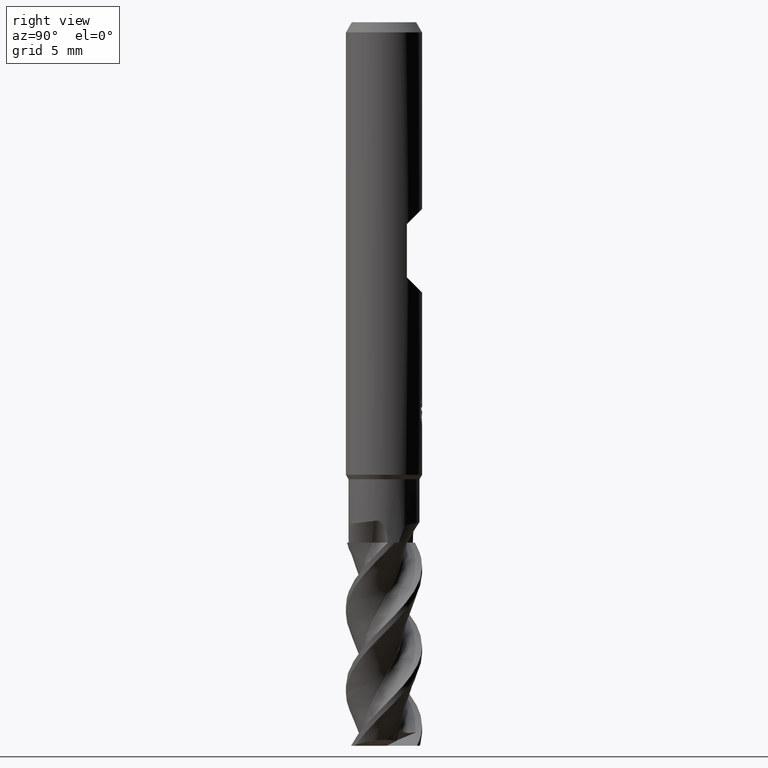
[diagram: clean part render]
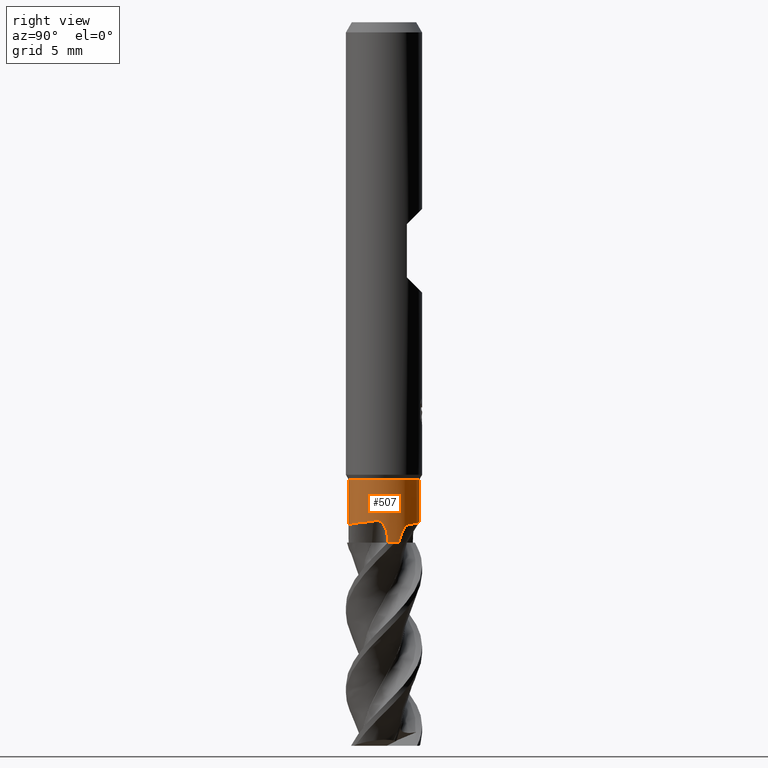
[diagram: same view with one face highlighted and labeled with its STEP entity id]
A machine part, right view. The second image highlights one B-rep face of the part: STEP entity #507.
In plain terms, the highlighted cylindrical surface (edge-blend (fillet) strip) has radius 2.7999 mm, axis along (-0, -0, 1).
Its self-contained STEP definition (entity closure, byte-faithful):
#491=EDGE_CURVE('',#1275,#677,#1359,.T.);
#507=ADVANCED_FACE('',(#1377),#1378,.T.);
#511=EDGE_CURVE('',#1193,#1149,#1382,.T.);
#533=EDGE_CURVE('',#1151,#1275,#1406,.T.);
#535=VERTEX_POINT('',#1408);
#589=VERTEX_POINT('',#1465);
#647=EDGE_CURVE('',#677,#535,#1527,.T.);
#677=VERTEX_POINT('',#1561);
#811=EDGE_CURVE('',#981,#589,#1709,.T.);
#901=EDGE_CURVE('',#1193,#589,#1808,.T.);
#981=VERTEX_POINT('',#1896);
#1069=EDGE_CURVE('',#981,#535,#1990,.T.);
#1111=EDGE_CURVE('',#1151,#1149,#2034,.T.);
#1149=VERTEX_POINT('',#2076);
#1151=VERTEX_POINT('',#2078);
#1193=VERTEX_POINT('',#2128);
#1275=VERTEX_POINT('',#2216);
#1359=B_SPLINE_CURVE_WITH_KNOTS('',3,(#2374,#2375,#2376,#2377,#2378,#2379,#2380,#2381,#2382,#2383,#2384,#2385,#2386,#2387),.UNSPECIFIED.,.F.,.F.,(4,2,2,2,2,2,4),(0.0,0.270750724048141,0.503985962693178,0.760948172209275,1.12620766547775,1.55957181737274,2.01677179178905),.UNSPECIFIED.);
#1377=FACE_OUTER_BOUND('',#2742,.T.);
#1378=CYLINDRICAL_SURFACE('',#2743,2.79995);
#1382=CIRCLE('',#2801,2.79995);
#1406=B_SPLINE_CURVE_WITH_KNOTS('',3,(#3312,#3313,#3314,#3315,#3316,#3317,#3318,#3319,#3320,#3321,#3322,#3323,#3324,#3325,#3326,#3327,#3328,#3329,#3330,#3331,#3332,#3333,#3334,#3335,#3336,#3337,#3338,#3339,#3340,#3341,#3342,#3343),.UNSPECIFIED.,.F.,.F.,(4,2,2,2,2,2,2,2,2,2,2,2,2,2,2,4),(0.0,1.21161568566194,1.3784614512403,1.47329026577986,1.50276758339504,1.52071331939619,1.53693237285625,1.55771434772985,1.60064794310033,1.80674053422712,2.02062760982944,2.36844400590092,3.13513750241832,4.21578584745323,4.78502595507138,5.34884206861933),.UNSPECIFIED.);
#1408=CARTESIAN_POINT('',(2.78669408379764,0.272132478449781,-41.0));
#1465=CARTESIAN_POINT('',(2.10389699615326E-009,2.79995,-39.3654765886539));
#1527=B_SPLINE_CURVE_WITH_KNOTS('',3,(#4046,#4047,#4048,#4049),.UNSPECIFIED.,.F.,.F.,(4,4),(0.0,0.388883061443336),.UNSPECIFIED.);
#1561=CARTESIAN_POINT('',(2.78738883582491,0.264921649584686,-40.6111816746857));
#1709=B_SPLINE_CURVE_WITH_KNOTS('',3,(#5131,#5132,#5133,#5134,#5135,#5136,#5137,#5138,#5139,#5140,#5141,#5142,#5143,#5144,#5145,#5146,#5147,#5148,#5149,#5150,#5151,#5152,#5153,#5154,#5155,#5156,#5157,#5158,#5159,#5160,#5161,#5162),.UNSPECIFIED.,.F.,.F.,(4,2,2,2,2,2,2,2,2,2,2,2,2,2,2,4),(0.0,1.21161568566885,1.37846145121529,1.47329026576383,1.50276758336711,1.52071331934799,1.53693237281325,1.55771434767431,1.6006479429974,1.80674053392393,2.02062760931936,2.3684440050621,3.13513750084955,4.21578584485333,4.78502595192732,5.34884206493603),.UNSPECIFIED.);
#1808=LINE('',#6143,#6144);
#1896=CARTESIAN_POINT('',(2.54719046065762,1.16255785216687,-41.0));
#1990=CIRCLE('',#7420,2.79995);
#2034=LINE('',#7672,#7673);
#2076=CARTESIAN_POINT('',(3.42883656038497E-016,-2.79995,-36.0));
#2078=CARTESIAN_POINT('',(-2.29880283077223E-015,-2.79995,-40.2983732954522));
#2128=CARTESIAN_POINT('',(0.0,2.79995,-36.0));
#2216=CARTESIAN_POINT('',(2.66784857932334,-0.849884674707355,-39.2992001891014));
#2374=CARTESIAN_POINT('',(2.66784857931745,-0.84988467472582,-39.2992001893713));
#2375=CARTESIAN_POINT('',(2.69364893102285,-0.768895531504305,-39.2688652821563));
#2376=CARTESIAN_POINT('',(2.7167286424285,-0.683534070615548,-39.2525659359706));
#2377=CARTESIAN_POINT('',(2.75238979990272,-0.51970291096378,-39.2591701640789));
#2378=CARTESIAN_POINT('',(2.76509681346806,-0.446101270102723,-39.2768173943779));
#2379=CARTESIAN_POINT('',(2.78513122905998,-0.298143927528133,-39.3426725767312));
#2380=CARTESIAN_POINT('',(2.79133891836439,-0.22808747450544,-39.3921879406331));
#2381=CARTESIAN_POINT('',(2.80027396331667,-0.077582290100716,-39.5345092410224));
#2382=CARTESIAN_POINT('',(2.80054225260432,-0.0050466433777626,-39.6367827003514));
#2383=CARTESIAN_POINT('',(2.798160520723,0.1213370764487,-39.8720401495675));
#2384=CARTESIAN_POINT('',(2.79488154355154,0.171894987121598,-40.0119892859719));
#2385=CARTESIAN_POINT('',(2.78965656789114,0.242613991358702,-40.3025843072924));
#2386=CARTESIAN_POINT('',(2.78767159904296,0.261946539627802,-40.457233540521));
#2387=CARTESIAN_POINT('',(2.78738883583437,0.264921649485141,-40.611181674686));
#2742=EDGE_LOOP('',(#9935,#9936,#9937,#9938,#9939,#9940,#9941,#9942));
#2743=AXIS2_PLACEMENT_3D('',#9943,#9944,#9945);
#2801=AXIS2_PLACEMENT_3D('',#9946,#9947,#9948);
#3312=CARTESIAN_POINT('',(-0.266790596982929,-2.78721057329034,-41.0000000000004));
#3313=CARTESIAN_POINT('',(-0.12905773821263,-2.80039430327746,-40.6205683768748));
#3314=CARTESIAN_POINT('',(0.0128717001084959,-2.80241247965801,-40.2391444602573));
#3315=CARTESIAN_POINT('',(0.147154023922113,-2.79612775844489,-39.974392678627));
#3316=CARTESIAN_POINT('',(0.164563309850221,-2.79517020585424,-39.9420062846511));
#3317=CARTESIAN_POINT('',(0.193316987634427,-2.7932879530591,-39.893390255363));
#3318=CARTESIAN_POINT('',(0.204217015497015,-2.79251603318701,-39.8759110321727));
#3319=CARTESIAN_POINT('',(0.219140511100922,-2.79136347279844,-39.8536033635465));
#3320=CARTESIAN_POINT('',(0.222733486916571,-2.79107921701723,-39.8483470585847));
#3321=CARTESIAN_POINT('',(0.228603234246342,-2.79060307640947,-39.8399590464612));
#3322=CARTESIAN_POINT('',(0.230845813454437,-2.79041849481651,-39.8367995082374));
#3323=CARTESIAN_POINT('',(0.235156742974344,-2.79005833742659,-39.8308159006635));
#3324=CARTESIAN_POINT('',(0.237221457324809,-2.78988357370339,-39.8279883017051));
#3325=CARTESIAN_POINT('',(0.241974186517183,-2.78947587796887,-39.8215703105708));
#3326=CARTESIAN_POINT('',(0.244674615576067,-2.78924037332973,-39.817988473536));
#3327=CARTESIAN_POINT('',(0.253052151103121,-2.78849721690731,-39.8070851595593));
#3328=CARTESIAN_POINT('',(0.258835376367114,-2.78796696013148,-39.7998453266009));
#3329=CARTESIAN_POINT('',(0.293249434362809,-2.78469805373667,-39.7585912157187));
#3330=CARTESIAN_POINT('',(0.324386895580063,-2.78133144987944,-39.7283497996894));
#3331=CARTESIAN_POINT('',(0.397571969066706,-2.77183496971221,-39.6749066456893));
#3332=CARTESIAN_POINT('',(0.437375599502105,-2.76590999203352,-39.6539314156298));
#3333=CARTESIAN_POINT('',(0.548225003405683,-2.74663852345043,-39.6088720918884));
#3334=CARTESIAN_POINT('',(0.624181368094352,-2.73047791109217,-39.5906466383523));
#3335=CARTESIAN_POINT('',(0.85210385060267,-2.67204763322722,-39.5463827204075));
#3336=CARTESIAN_POINT('',(1.05804233268657,-2.6047806209609,-39.5245383515918));
#3337=CARTESIAN_POINT('',(1.60233486717179,-2.32392186110581,-39.471130470762));
#3338=CARTESIAN_POINT('',(1.88662674826115,-2.09988727541145,-39.4451106481476));
#3339=CARTESIAN_POINT('',(2.24478868760592,-1.68418652225877,-39.3976650028158));
#3340=CARTESIAN_POINT('',(2.35341429578667,-1.5286944566189,-39.3803326369126));
#3341=CARTESIAN_POINT('',(2.53668477485501,-1.20000749388761,-39.3424216932772));
#3342=CARTESIAN_POINT('',(2.61114144244642,-1.02789241982489,-39.321992538188));
#3343=CARTESIAN_POINT('',(2.66784857932335,-0.849884674707345,-39.2992001891013));
#4046=CARTESIAN_POINT('',(2.7873888358249,0.264921649584684,-40.6111816746856));
#4047=CARTESIAN_POINT('',(2.78715078788507,0.267426285090707,-40.740784943971));
#4048=CARTESIAN_POINT('',(2.78691887605749,0.269830558207935,-40.8703929131832));
#4049=CARTESIAN_POINT('',(2.78669408379764,0.272132478449787,-41.0000000000004));
#5131=CARTESIAN_POINT('',(2.54719046065774,1.16255785216659,-41.0000000000009));
#5132=CARTESIAN_POINT('',(2.48974147635778,1.28842987179179,-40.6205683768731));
#5133=CARTESIAN_POINT('',(2.42052454921033,1.41235345911622,-40.2391444602444));
#5134=CARTESIAN_POINT('',(2.34794065907669,1.5255030022117,-39.9743926786177));
#5135=CARTESIAN_POINT('',(2.33840675124479,1.54010110979013,-39.9420062846459));
#5136=CARTESIAN_POINT('',(2.32239983361625,1.56406139880519,-39.8933902553593));
#5137=CARTESIAN_POINT('',(2.31628131746644,1.57311513989947,-39.8759110321705));
#5138=CARTESIAN_POINT('',(2.30782142308997,1.5854629860094,-39.853603363548));
#5139=CARTESIAN_POINT('',(2.30577876245391,1.58843246645113,-39.8483470585845));
#5140=CARTESIAN_POINT('',(2.30243153892704,1.59327774644847,-39.8399590464613));
#5141=CARTESIAN_POINT('',(2.30115039697412,1.59512758621666,-39.8367995082368));
#5142=CARTESIAN_POINT('',(2.29868302676287,1.59868088200312,-39.8308159006574));
#5143=CARTESIAN_POINT('',(2.29749931976468,1.60038159521914,-39.8279883017015));
#5144=CARTESIAN_POINT('',(2.29476988030901,1.6042937315646,-39.8215703105757));
#5145=CARTESIAN_POINT('',(2.29321571277801,1.60651461941309,-39.8179884735375));
#5146=CARTESIAN_POINT('',(2.28838335267129,1.61339819979281,-39.8070851595554));
#5147=CARTESIAN_POINT('',(2.28503252420139,1.61814149139859,-39.7998453265984));
#5148=CARTESIAN_POINT('',(2.26499453922363,1.64631048667195,-39.7585912157174));
#5149=CARTESIAN_POINT('',(2.24651024415013,1.67159301716689,-39.728349799688));
#5150=CARTESIAN_POINT('',(2.20169351433526,1.73022490990078,-39.6749066456878));
#5151=CARTESIAN_POINT('',(2.17666051793053,1.76173337618181,-39.6539314156283));
#5152=CARTESIAN_POINT('',(2.10454623461821,1.84809604166433,-39.6088720918874));
#5153=CARTESIAN_POINT('',(2.05257255143119,1.90579587688443,-39.5906466383513));
#5154=CARTESIAN_POINT('',(1.88800920519505,2.07396739789852,-39.5463827204065));
#5155=CARTESIAN_POINT('',(1.72678502269339,2.21868184886711,-39.5245383515907));
#5156=CARTESIAN_POINT('',(1.21140793454008,2.54962363089405,-39.471130470761));
#5157=CARTESIAN_POINT('',(0.875242351457579,2.6838103291597,-39.4451106481466));
#5158=CARTESIAN_POINT('',(0.336153969182967,2.78613729072419,-39.3976650028148));
#5159=CARTESIAN_POINT('',(0.147181086161893,2.80246379409022,-39.3803326369117));
#5160=CARTESIAN_POINT('',(-0.229105412989771,2.79683720336138,-39.3424216932763));
#5161=CARTESIAN_POINT('',(-0.415389773297701,2.77526103194532,-39.3219925381871));
#5162=CARTESIAN_POINT('',(-0.597902571078069,2.73536698049791,-39.2992001891005));
#6143=CARTESIAN_POINT('',(-3.42880514039503E-016,2.79995,-38.5));
#6144=VECTOR('',#10400,1.0);
#7420=AXIS2_PLACEMENT_3D('',#10560,#10561,#10562);
#7672=CARTESIAN_POINT('',(3.4288679803749E-016,-2.79995,-38.5));
#7673=VECTOR('',#10587,1.0);
#9935=ORIENTED_EDGE('',*,*,#901,.F.);
#9936=ORIENTED_EDGE('',*,*,#511,.T.);
#9937=ORIENTED_EDGE('',*,*,#1111,.F.);
#9938=ORIENTED_EDGE('',*,*,#533,.T.);
#9939=ORIENTED_EDGE('',*,*,#491,.T.);
#9940=ORIENTED_EDGE('',*,*,#647,.T.);
#9941=ORIENTED_EDGE('',*,*,#1069,.F.);
#9942=ORIENTED_EDGE('',*,*,#811,.T.);
#9943=CARTESIAN_POINT('',(0.0,0.0,-38.5));
#9944=DIRECTION('',(-0.0,-0.0,1.0));
#9945=DIRECTION('',(0.0,1.0,0.0));
#9946=CARTESIAN_POINT('',(0.0,0.0,-36.0));
#9947=DIRECTION('',(0.0,0.0,-1.0));
#9948=DIRECTION('',(0.0,1.0,0.0));
#10400=DIRECTION('',(0.0,0.0,-1.0));
#10560=CARTESIAN_POINT('',(0.0,0.0,-41.0));
#10561=DIRECTION('',(0.0,0.0,-1.0));
#10562=DIRECTION('',(0.0,1.0,0.0));
#10587=DIRECTION('',(-0.0,-0.0,1.0));